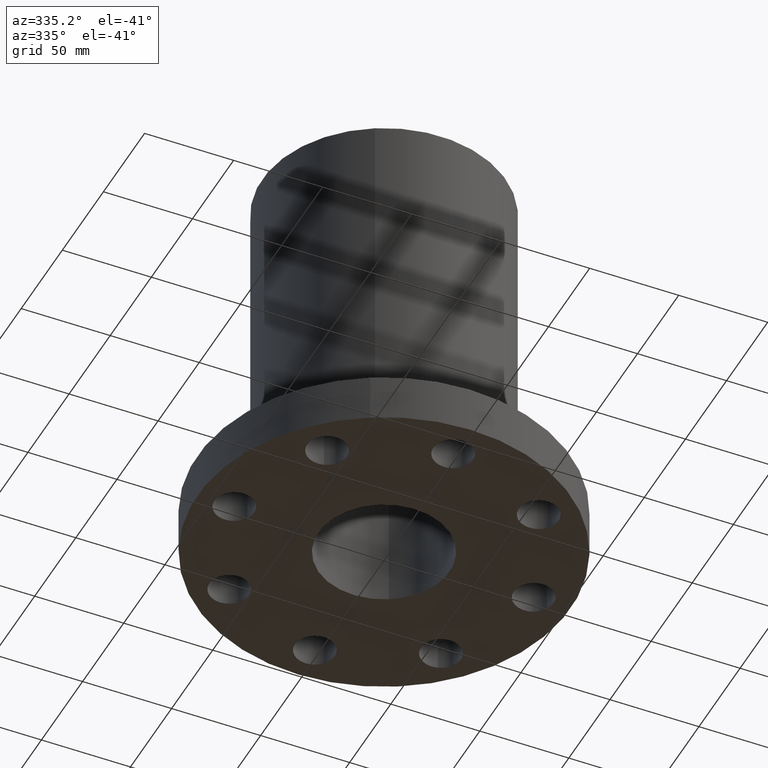
[diagram: clean part render]
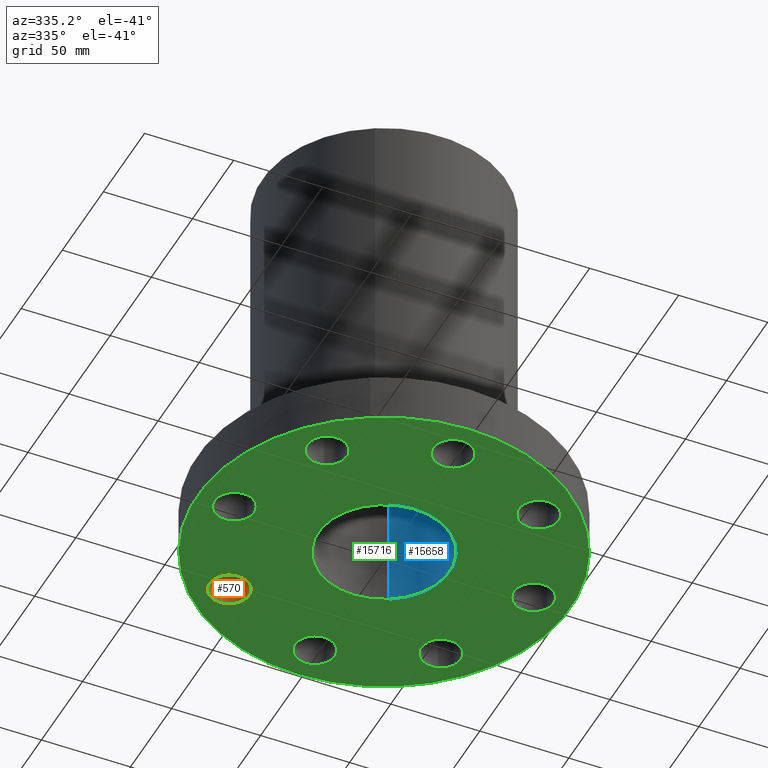
[diagram: same view with three faces highlighted in distinct colors, each labeled with its STEP entity id]
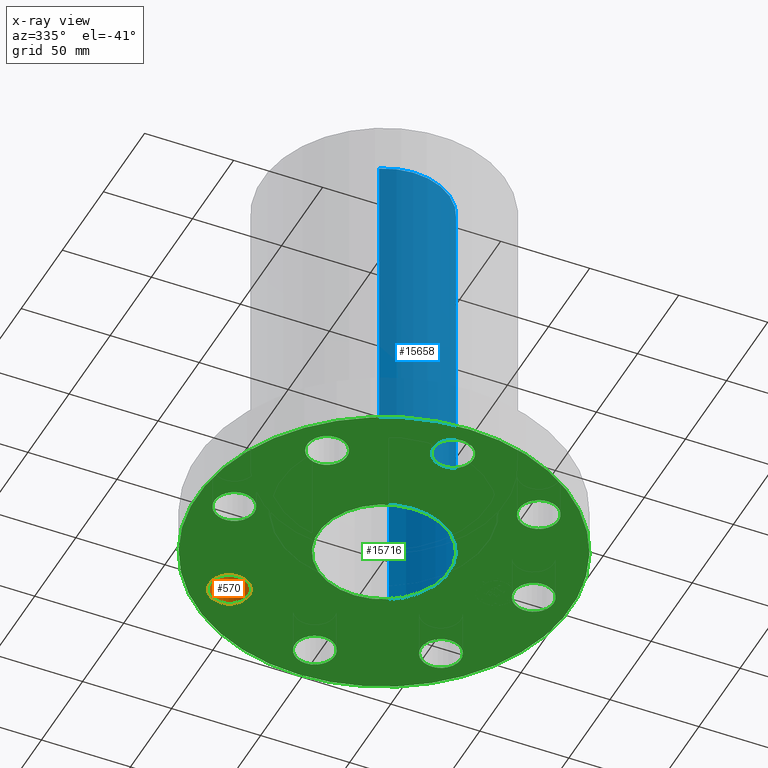
[diagram: x-ray of the same camera — body ghosted, the three highlighted faces saturated]
A machine part, auxiliary view with three faces highlighted in distinct colors.
The next image is the same camera in x-ray (body ghosted, the three faces saturated) — at least one of them is partly hidden behind the body in this view.
Their STEP definitions:

[orange] entity #570 — the highlighted cylindrical surface (edge-blend (fillet) strip) has radius 11.176 mm, axis along (0, 0, 1).
#220=AXIS2_PLACEMENT_3D('Circle Axis2P3D',#218,#219,$) ;
#543=AXIS2_PLACEMENT_3D('Cylinder Axis2P3D',#540,#541,#542) ;
#561=AXIS2_PLACEMENT_3D('Circle Axis2P3D',#559,#560,$) ;
#213=CARTESIAN_POINT('Vertex',(-1.91832160854,2.21664605203,1.0575)) ;
#215=CARTESIAN_POINT('Vertex',(-2.76272528293,2.46440083944,1.0575)) ;
#218=CARTESIAN_POINT('Axis2P3D Location',(-2.34052344574,2.34052344574,1.0575)) ;
#540=CARTESIAN_POINT('Axis2P3D Location',(-2.34052344574,2.34052344574,0.00393700787402)) ;
#545=CARTESIAN_POINT('Line Origine',(-1.91832160854,2.21664605203,0.528750000002)) ;
#549=CARTESIAN_POINT('Vertex',(-1.91832160854,2.21664605203,2.2401153548E-016)) ;
#552=CARTESIAN_POINT('Line Origine',(-2.76272528293,2.46440083944,0.528750000002)) ;
#556=CARTESIAN_POINT('Vertex',(-2.76272528293,2.46440083944,2.2401153548E-016)) ;
#559=CARTESIAN_POINT('Axis2P3D Location',(-2.34052344574,2.34052344574,0.)) ;
#219=DIRECTION('Axis2P3D Direction',(0.,0.,-0.0393700787402)) ;
#541=DIRECTION('Axis2P3D Direction',(0.,0.,0.0393700787402)) ;
#542=DIRECTION('Axis2P3D XDirection',(-0.0377775444876,0.0110842335096,0.)) ;
#546=DIRECTION('Vector Direction',(0.,0.,0.0393700787402)) ;
#553=DIRECTION('Vector Direction',(0.,0.,0.0393700787402)) ;
#560=DIRECTION('Axis2P3D Direction',(0.,0.,0.0393700787402)) ;
#547=VECTOR('Line Direction',#546,0.0393700787402) ;
#554=VECTOR('Line Direction',#553,0.0393700787402) ;
#565=ORIENTED_EDGE('',*,*,#551,.F.) ;
#566=ORIENTED_EDGE('',*,*,#222,.F.) ;
#567=ORIENTED_EDGE('',*,*,#558,.T.) ;
#568=ORIENTED_EDGE('',*,*,#563,.T.) ;
#570=ADVANCED_FACE('PartBody',(#569),#544,.F.) ;
#221=CIRCLE('generated circle',#220,0.440000000002) ;
#562=CIRCLE('generated circle',#561,0.440000000002) ;
#544=CYLINDRICAL_SURFACE('generated cylinder',#543,0.440000000002) ;
#222=EDGE_CURVE('',#216,#214,#221,.T.) ;
#551=EDGE_CURVE('',#214,#550,#548,.F.) ;
#558=EDGE_CURVE('',#216,#557,#555,.F.) ;
#563=EDGE_CURVE('',#557,#550,#562,.F.) ;
#564=EDGE_LOOP('',(#565,#566,#567,#568)) ;
#569=FACE_OUTER_BOUND('',#564,.T.) ;
#548=LINE('Line',#545,#547) ;
#555=LINE('Line',#552,#554) ;
#214=VERTEX_POINT('',#213) ;
#216=VERTEX_POINT('',#215) ;
#550=VERTEX_POINT('',#549) ;
#557=VERTEX_POINT('',#556) ;

[blue] entity #15658 — the highlighted cylindrical surface (partial cylindrical patch) has radius 36.83 mm, axis along (0, 0, -1).
#15202=AXIS2_PLACEMENT_3D('Circle Axis2P3D',#15200,#15201,$) ;
#15631=AXIS2_PLACEMENT_3D('Cylinder Axis2P3D',#15628,#15629,#15630) ;
#15635=AXIS2_PLACEMENT_3D('Circle Axis2P3D',#15633,#15634,$) ;
#15195=CARTESIAN_POINT('Vertex',(-0.695167030979,-1.27249471475,8.93750000004)) ;
#15197=CARTESIAN_POINT('Vertex',(0.695167030979,1.27249471475,8.93750000004)) ;
#15200=CARTESIAN_POINT('Axis2P3D Location',(0.,0.,8.93750000004)) ;
#15628=CARTESIAN_POINT('Axis2P3D Location',(0.,0.,4.43750000002)) ;
#15633=CARTESIAN_POINT('Axis2P3D Location',(0.,0.,0.)) ;
#15637=CARTESIAN_POINT('Vertex',(-0.695167030979,-1.27249471475,0.)) ;
#15639=CARTESIAN_POINT('Vertex',(0.695167030979,1.27249471475,0.)) ;
#15642=CARTESIAN_POINT('Line Origine',(-0.695167030979,-1.27249471475,4.46875000002)) ;
#15647=CARTESIAN_POINT('Line Origine',(0.695167030979,1.27249471475,4.46875000002)) ;
#15201=DIRECTION('Axis2P3D Direction',(0.,0.,-0.0393700787402)) ;
#15629=DIRECTION('Axis2P3D Direction',(0.,0.,-0.0393700787402)) ;
#15630=DIRECTION('Axis2P3D XDirection',(-0.0188750212049,-0.0345504945626,0.)) ;
#15634=DIRECTION('Axis2P3D Direction',(0.,0.,-0.0393700787402)) ;
#15643=DIRECTION('Vector Direction',(0.,0.,-0.0393700787402)) ;
#15648=DIRECTION('Vector Direction',(0.,0.,-0.0393700787402)) ;
#15644=VECTOR('Line Direction',#15643,0.0393700787402) ;
#15649=VECTOR('Line Direction',#15648,0.0393700787402) ;
#15653=ORIENTED_EDGE('',*,*,#15641,.F.) ;
#15654=ORIENTED_EDGE('',*,*,#15646,.F.) ;
#15655=ORIENTED_EDGE('',*,*,#15204,.F.) ;
#15656=ORIENTED_EDGE('',*,*,#15651,.T.) ;
#15658=ADVANCED_FACE('PartBody',(#15657),#15632,.F.) ;
#15203=CIRCLE('generated circle',#15202,1.45000000001) ;
#15636=CIRCLE('generated circle',#15635,1.45000000001) ;
#15632=CYLINDRICAL_SURFACE('generated cylinder',#15631,1.45000000001) ;
#15204=EDGE_CURVE('',#15198,#15196,#15203,.T.) ;
#15641=EDGE_CURVE('',#15638,#15640,#15636,.F.) ;
#15646=EDGE_CURVE('',#15196,#15638,#15645,.T.) ;
#15651=EDGE_CURVE('',#15198,#15640,#15650,.T.) ;
#15652=EDGE_LOOP('',(#15653,#15654,#15655,#15656)) ;
#15657=FACE_OUTER_BOUND('',#15652,.T.) ;
#15645=LINE('Line',#15642,#15644) ;
#15650=LINE('Line',#15647,#15649) ;
#15196=VERTEX_POINT('',#15195) ;
#15198=VERTEX_POINT('',#15197) ;
#15638=VERTEX_POINT('',#15637) ;
#15640=VERTEX_POINT('',#15639) ;

[green] entity #15716 — the highlighted planar face has unit normal (0, 0, 1).
#65=AXIS2_PLACEMENT_3D('Circle Axis2P3D',#63,#64,$) ;
#82=AXIS2_PLACEMENT_3D('Circle Axis2P3D',#80,#81,$) ;
#289=AXIS2_PLACEMENT_3D('Circle Axis2P3D',#287,#288,$) ;
#315=AXIS2_PLACEMENT_3D('Circle Axis2P3D',#313,#314,$) ;
#389=AXIS2_PLACEMENT_3D('Circle Axis2P3D',#387,#388,$) ;
#401=AXIS2_PLACEMENT_3D('Circle Axis2P3D',#399,#400,$) ;
#432=AXIS2_PLACEMENT_3D('Circle Axis2P3D',#430,#431,$) ;
#444=AXIS2_PLACEMENT_3D('Circle Axis2P3D',#442,#443,$) ;
#475=AXIS2_PLACEMENT_3D('Circle Axis2P3D',#473,#474,$) ;
#487=AXIS2_PLACEMENT_3D('Circle Axis2P3D',#485,#486,$) ;
#518=AXIS2_PLACEMENT_3D('Circle Axis2P3D',#516,#517,$) ;
#530=AXIS2_PLACEMENT_3D('Circle Axis2P3D',#528,#529,$) ;
#561=AXIS2_PLACEMENT_3D('Circle Axis2P3D',#559,#560,$) ;
#573=AXIS2_PLACEMENT_3D('Circle Axis2P3D',#571,#572,$) ;
#604=AXIS2_PLACEMENT_3D('Circle Axis2P3D',#602,#603,$) ;
#616=AXIS2_PLACEMENT_3D('Circle Axis2P3D',#614,#615,$) ;
#647=AXIS2_PLACEMENT_3D('Circle Axis2P3D',#645,#646,$) ;
#659=AXIS2_PLACEMENT_3D('Circle Axis2P3D',#657,#658,$) ;
#15635=AXIS2_PLACEMENT_3D('Circle Axis2P3D',#15633,#15634,$) ;
#15661=AXIS2_PLACEMENT_3D('Circle Axis2P3D',#15659,#15660,$) ;
#15674=AXIS2_PLACEMENT_3D('Plane Axis2P3D',#15671,#15672,#15673) ;
#46=CARTESIAN_POINT('Vertex',(2.92386367278,-0.210947236987,2.2401153548E-016)) ;
#60=CARTESIAN_POINT('Vertex',(3.69613632725,0.210947236987,2.2401153548E-016)) ;
#63=CARTESIAN_POINT('Axis2P3D Location',(3.31000000001,0.,0.)) ;
#80=CARTESIAN_POINT('Axis2P3D Location',(3.31000000001,0.,0.)) ;
#287=CARTESIAN_POINT('Axis2P3D Location',(0.,0.,5.59482469102E-016)) ;
#291=CARTESIAN_POINT('Vertex',(-1.97763034675,-3.62002806781,5.59482469102E-016)) ;
#293=CARTESIAN_POINT('Vertex',(1.97763034675,3.62002806781,5.59482469102E-016)) ;
#313=CARTESIAN_POINT('Axis2P3D Location',(0.,0.,5.59482469102E-016)) ;
#377=CARTESIAN_POINT('Vertex',(1.91832160854,-2.21664605203,2.2401153548E-016)) ;
#384=CARTESIAN_POINT('Vertex',(2.76272528293,-2.46440083944,2.2401153548E-016)) ;
#387=CARTESIAN_POINT('Axis2P3D Location',(2.34052344574,-2.34052344574,0.)) ;
#399=CARTESIAN_POINT('Axis2P3D Location',(2.34052344574,-2.34052344574,0.)) ;
#420=CARTESIAN_POINT('Vertex',(-0.210947236987,-2.92386367278,2.2401153548E-016)) ;
#427=CARTESIAN_POINT('Vertex',(0.210947236987,-3.69613632725,2.2401153548E-016)) ;
#430=CARTESIAN_POINT('Axis2P3D Location',(-3.56803423843E-016,-3.31000000001,0.)) ;
#442=CARTESIAN_POINT('Axis2P3D Location',(-3.56803423843E-016,-3.31000000001,0.)) ;
#463=CARTESIAN_POINT('Vertex',(-2.21664605203,-1.91832160854,2.2401153548E-016)) ;
#470=CARTESIAN_POINT('Vertex',(-2.46440083944,-2.76272528293,2.2401153548E-016)) ;
#473=CARTESIAN_POINT('Axis2P3D Location',(-2.34052344574,-2.34052344574,0.)) ;
#485=CARTESIAN_POINT('Axis2P3D Location',(-2.34052344574,-2.34052344574,0.)) ;
#506=CARTESIAN_POINT('Vertex',(-2.92386367278,0.210947236987,2.2401153548E-016)) ;
#513=CARTESIAN_POINT('Vertex',(-3.69613632725,-0.210947236987,2.2401153548E-016)) ;
#516=CARTESIAN_POINT('Axis2P3D Location',(-3.31000000001,-4.05358090519E-016,0.)) ;
#528=CARTESIAN_POINT('Axis2P3D Location',(-3.31000000001,-4.05358090519E-016,0.)) ;
#549=CARTESIAN_POINT('Vertex',(-1.91832160854,2.21664605203,2.2401153548E-016)) ;
#556=CARTESIAN_POINT('Vertex',(-2.76272528293,2.46440083944,2.2401153548E-016)) ;
#559=CARTESIAN_POINT('Axis2P3D Location',(-2.34052344574,2.34052344574,0.)) ;
#571=CARTESIAN_POINT('Axis2P3D Location',(-2.34052344574,2.34052344574,0.)) ;
#592=CARTESIAN_POINT('Vertex',(0.210947236987,2.92386367278,2.2401153548E-016)) ;
#599=CARTESIAN_POINT('Vertex',(-0.210947236987,3.69613632725,2.2401153548E-016)) ;
#602=CARTESIAN_POINT('Axis2P3D Location',(-6.08037135779E-016,3.31000000001,0.)) ;
#614=CARTESIAN_POINT('Axis2P3D Location',(-6.08037135779E-016,3.31000000001,0.)) ;
#635=CARTESIAN_POINT('Vertex',(2.21664605203,1.91832160854,2.2401153548E-016)) ;
#642=CARTESIAN_POINT('Vertex',(2.46440083944,2.76272528293,2.2401153548E-016)) ;
#645=CARTESIAN_POINT('Axis2P3D Location',(2.34052344574,2.34052344574,0.)) ;
#657=CARTESIAN_POINT('Axis2P3D Location',(2.34052344574,2.34052344574,0.)) ;
#15633=CARTESIAN_POINT('Axis2P3D Location',(0.,0.,0.)) ;
#15637=CARTESIAN_POINT('Vertex',(-0.695167030979,-1.27249471475,0.)) ;
#15639=CARTESIAN_POINT('Vertex',(0.695167030979,1.27249471475,0.)) ;
#15659=CARTESIAN_POINT('Axis2P3D Location',(0.,0.,0.)) ;
#15671=CARTESIAN_POINT('Axis2P3D Location',(0.,0.,0.)) ;
#64=DIRECTION('Axis2P3D Direction',(0.,-0.,0.0393700787402)) ;
#81=DIRECTION('Axis2P3D Direction',(0.,-0.,0.0393700787402)) ;
#288=DIRECTION('Axis2P3D Direction',(0.,0.,-0.0393700787402)) ;
#314=DIRECTION('Axis2P3D Direction',(0.,0.,-0.0393700787402)) ;
#388=DIRECTION('Axis2P3D Direction',(-0.,0.,0.0393700787402)) ;
#400=DIRECTION('Axis2P3D Direction',(-0.,0.,0.0393700787402)) ;
#431=DIRECTION('Axis2P3D Direction',(-0.,0.,0.0393700787402)) ;
#443=DIRECTION('Axis2P3D Direction',(-0.,0.,0.0393700787402)) ;
#474=DIRECTION('Axis2P3D Direction',(0.,0.,0.0393700787402)) ;
#486=DIRECTION('Axis2P3D Direction',(0.,0.,0.0393700787402)) ;
#517=DIRECTION('Axis2P3D Direction',(0.,0.,0.0393700787402)) ;
#529=DIRECTION('Axis2P3D Direction',(0.,0.,0.0393700787402)) ;
#560=DIRECTION('Axis2P3D Direction',(0.,0.,0.0393700787402)) ;
#572=DIRECTION('Axis2P3D Direction',(0.,0.,0.0393700787402)) ;
#603=DIRECTION('Axis2P3D Direction',(0.,0.,0.0393700787402)) ;
#615=DIRECTION('Axis2P3D Direction',(0.,0.,0.0393700787402)) ;
#646=DIRECTION('Axis2P3D Direction',(0.,-0.,0.0393700787402)) ;
#658=DIRECTION('Axis2P3D Direction',(0.,-0.,0.0393700787402)) ;
#15634=DIRECTION('Axis2P3D Direction',(0.,0.,-0.0393700787402)) ;
#15660=DIRECTION('Axis2P3D Direction',(0.,0.,-0.0393700787402)) ;
#15672=DIRECTION('Axis2P3D Direction',(0.,0.,0.0393700787402)) ;
#15673=DIRECTION('Axis2P3D XDirection',(0.0393700787402,0.,0.)) ;
#15677=ORIENTED_EDGE('',*,*,#317,.T.) ;
#15678=ORIENTED_EDGE('',*,*,#295,.T.) ;
#15681=ORIENTED_EDGE('',*,*,#649,.F.) ;
#15682=ORIENTED_EDGE('',*,*,#661,.F.) ;
#15685=ORIENTED_EDGE('',*,*,#606,.F.) ;
#15686=ORIENTED_EDGE('',*,*,#618,.F.) ;
#15689=ORIENTED_EDGE('',*,*,#563,.F.) ;
#15690=ORIENTED_EDGE('',*,*,#575,.F.) ;
#15693=ORIENTED_EDGE('',*,*,#520,.F.) ;
#15694=ORIENTED_EDGE('',*,*,#532,.F.) ;
#15697=ORIENTED_EDGE('',*,*,#477,.F.) ;
#15698=ORIENTED_EDGE('',*,*,#489,.F.) ;
#15701=ORIENTED_EDGE('',*,*,#434,.F.) ;
#15702=ORIENTED_EDGE('',*,*,#446,.F.) ;
#15705=ORIENTED_EDGE('',*,*,#391,.F.) ;
#15706=ORIENTED_EDGE('',*,*,#403,.F.) ;
#15709=ORIENTED_EDGE('',*,*,#84,.F.) ;
#15710=ORIENTED_EDGE('',*,*,#67,.F.) ;
#15713=ORIENTED_EDGE('',*,*,#15663,.T.) ;
#15714=ORIENTED_EDGE('',*,*,#15641,.T.) ;
#15683=FACE_BOUND('',#15680,.T.) ;
#15687=FACE_BOUND('',#15684,.T.) ;
#15691=FACE_BOUND('',#15688,.T.) ;
#15695=FACE_BOUND('',#15692,.T.) ;
#15699=FACE_BOUND('',#15696,.T.) ;
#15703=FACE_BOUND('',#15700,.T.) ;
#15707=FACE_BOUND('',#15704,.T.) ;
#15711=FACE_BOUND('',#15708,.T.) ;
#15715=FACE_BOUND('',#15712,.T.) ;
#15716=ADVANCED_FACE('PartBody',(#15679,#15683,#15687,#15691,#15695,#15699,#15703,#15707,#15711,#15715),#15675,.F.) ;
#66=CIRCLE('generated circle',#65,0.440000000002) ;
#83=CIRCLE('generated circle',#82,0.440000000002) ;
#290=CIRCLE('generated circle',#289,4.12500000002) ;
#316=CIRCLE('generated circle',#315,4.12500000002) ;
#390=CIRCLE('generated circle',#389,0.440000000002) ;
#402=CIRCLE('generated circle',#401,0.440000000002) ;
#433=CIRCLE('generated circle',#432,0.440000000002) ;
#445=CIRCLE('generated circle',#444,0.440000000002) ;
#476=CIRCLE('generated circle',#475,0.440000000002) ;
#488=CIRCLE('generated circle',#487,0.440000000002) ;
#519=CIRCLE('generated circle',#518,0.440000000002) ;
#531=CIRCLE('generated circle',#530,0.440000000002) ;
#562=CIRCLE('generated circle',#561,0.440000000002) ;
#574=CIRCLE('generated circle',#573,0.440000000002) ;
#605=CIRCLE('generated circle',#604,0.440000000002) ;
#617=CIRCLE('generated circle',#616,0.440000000002) ;
#648=CIRCLE('generated circle',#647,0.440000000002) ;
#660=CIRCLE('generated circle',#659,0.440000000002) ;
#15636=CIRCLE('generated circle',#15635,1.45000000001) ;
#15662=CIRCLE('generated circle',#15661,1.45000000001) ;
#67=EDGE_CURVE('',#61,#47,#66,.F.) ;
#84=EDGE_CURVE('',#47,#61,#83,.F.) ;
#295=EDGE_CURVE('',#292,#294,#290,.T.) ;
#317=EDGE_CURVE('',#294,#292,#316,.T.) ;
#391=EDGE_CURVE('',#385,#378,#390,.F.) ;
#403=EDGE_CURVE('',#378,#385,#402,.F.) ;
#434=EDGE_CURVE('',#428,#421,#433,.F.) ;
#446=EDGE_CURVE('',#421,#428,#445,.F.) ;
#477=EDGE_CURVE('',#471,#464,#476,.F.) ;
#489=EDGE_CURVE('',#464,#471,#488,.F.) ;
#520=EDGE_CURVE('',#514,#507,#519,.F.) ;
#532=EDGE_CURVE('',#507,#514,#531,.F.) ;
#563=EDGE_CURVE('',#557,#550,#562,.F.) ;
#575=EDGE_CURVE('',#550,#557,#574,.F.) ;
#606=EDGE_CURVE('',#600,#593,#605,.F.) ;
#618=EDGE_CURVE('',#593,#600,#617,.F.) ;
#649=EDGE_CURVE('',#643,#636,#648,.F.) ;
#661=EDGE_CURVE('',#636,#643,#660,.F.) ;
#15641=EDGE_CURVE('',#15638,#15640,#15636,.F.) ;
#15663=EDGE_CURVE('',#15640,#15638,#15662,.F.) ;
#15676=EDGE_LOOP('',(#15677,#15678)) ;
#15680=EDGE_LOOP('',(#15681,#15682)) ;
#15684=EDGE_LOOP('',(#15685,#15686)) ;
#15688=EDGE_LOOP('',(#15689,#15690)) ;
#15692=EDGE_LOOP('',(#15693,#15694)) ;
#15696=EDGE_LOOP('',(#15697,#15698)) ;
#15700=EDGE_LOOP('',(#15701,#15702)) ;
#15704=EDGE_LOOP('',(#15705,#15706)) ;
#15708=EDGE_LOOP('',(#15709,#15710)) ;
#15712=EDGE_LOOP('',(#15713,#15714)) ;
#15679=FACE_OUTER_BOUND('',#15676,.T.) ;
#15675=PLANE('',#15674) ;
#47=VERTEX_POINT('',#46) ;
#61=VERTEX_POINT('',#60) ;
#292=VERTEX_POINT('',#291) ;
#294=VERTEX_POINT('',#293) ;
#378=VERTEX_POINT('',#377) ;
#385=VERTEX_POINT('',#384) ;
#421=VERTEX_POINT('',#420) ;
#428=VERTEX_POINT('',#427) ;
#464=VERTEX_POINT('',#463) ;
#471=VERTEX_POINT('',#470) ;
#507=VERTEX_POINT('',#506) ;
#514=VERTEX_POINT('',#513) ;
#550=VERTEX_POINT('',#549) ;
#557=VERTEX_POINT('',#556) ;
#593=VERTEX_POINT('',#592) ;
#600=VERTEX_POINT('',#599) ;
#636=VERTEX_POINT('',#635) ;
#643=VERTEX_POINT('',#642) ;
#15638=VERTEX_POINT('',#15637) ;
#15640=VERTEX_POINT('',#15639) ;